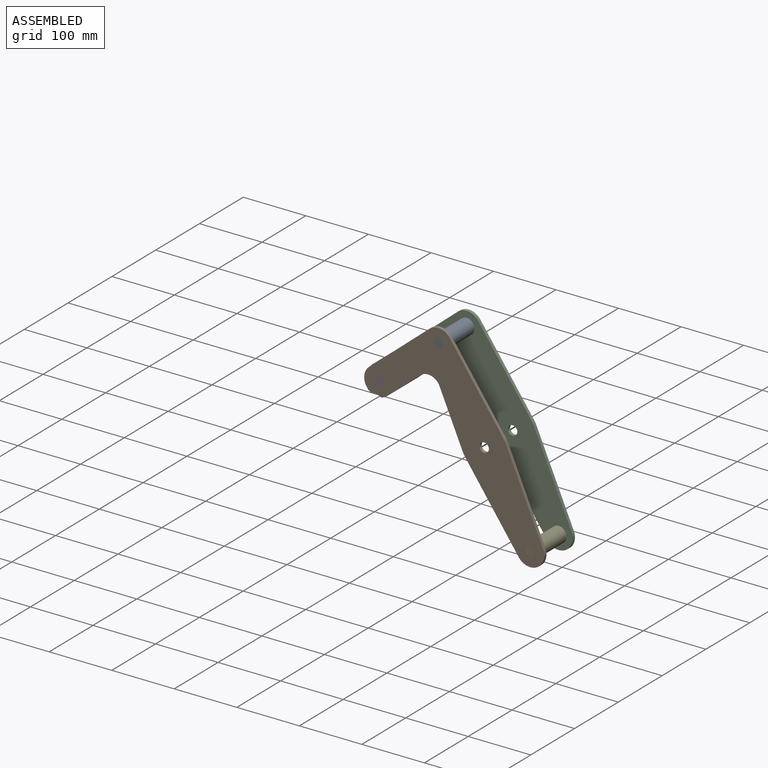
[diagram: assembled view]
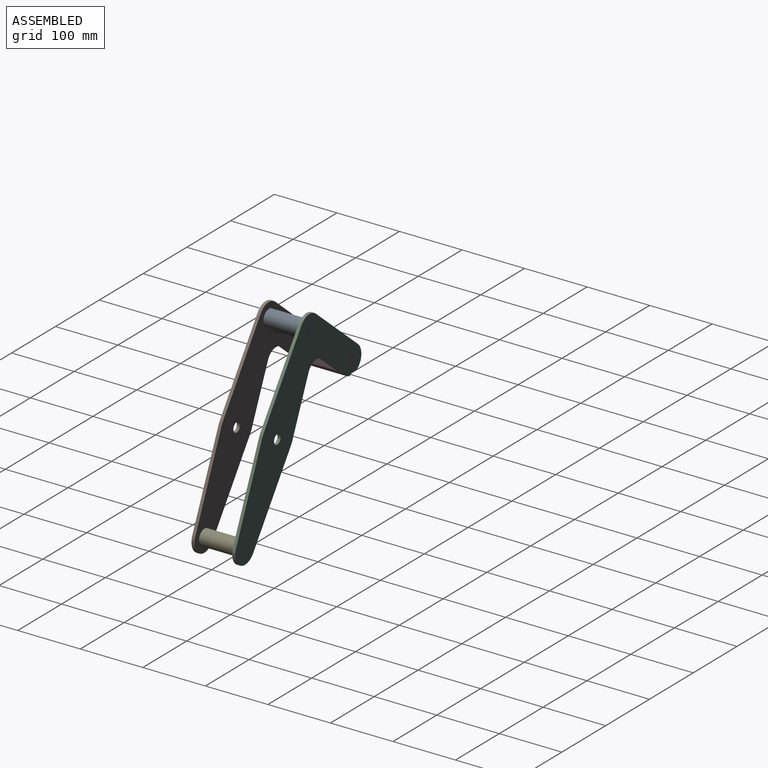
[diagram: assembled view, second angle]
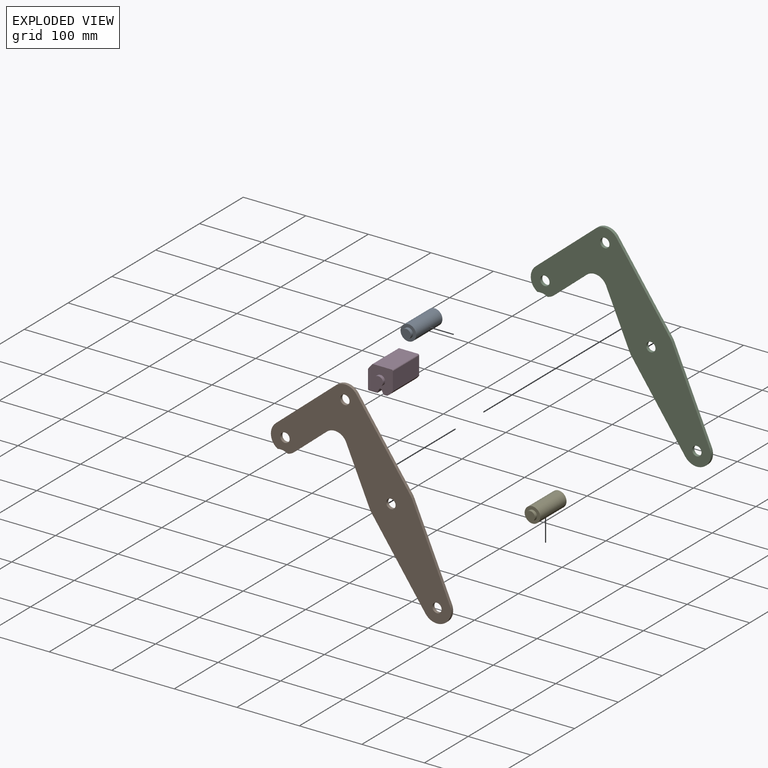
[diagram: exploded view]
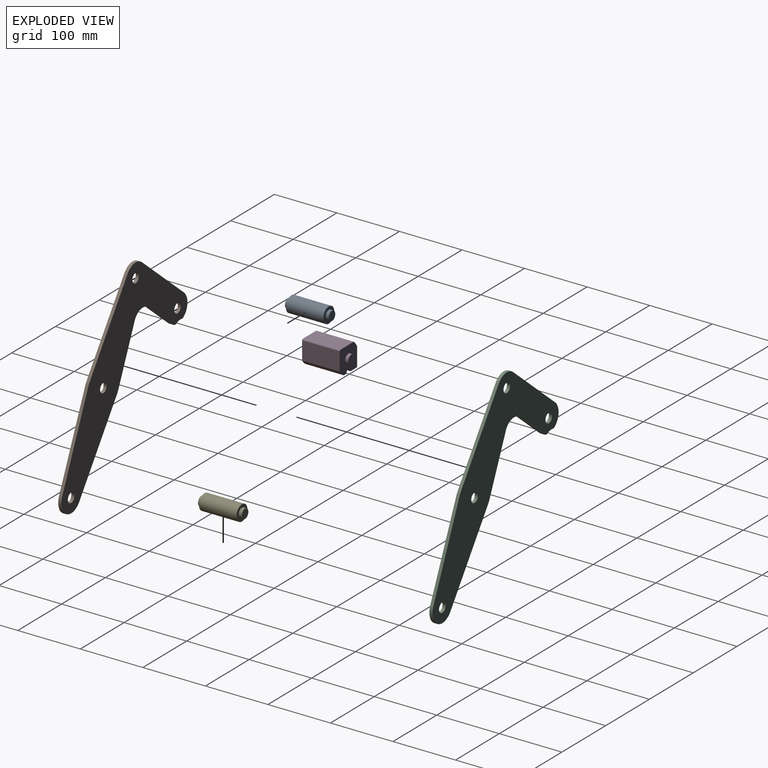
[diagram: exploded view, second angle]
ASSEMBLY  parts=5 mates=3
PART A: 7 faces, bbox 25x70x25 mm
  f0: cylinder r=12.5mm len=60mm, axis (0,-1,0), area 4712.4mm2, adj f2,f5
  f1: cylinder r=7.5mm len=15mm, axis (0,1,0), area 235.6mm2, adj f2,f3
  f2: plane 25x25mm, normal (0,-1,0), area 314.2mm2, adj f0,f1
  f3: plane 15x15mm, normal (0,-1,0), area 176.7mm2, adj f1
  f4: cylinder r=7.5mm len=15mm, axis (0,-1,0), area 235.6mm2, adj f5,f6
  f5: plane 25x25mm, normal (0,1,0), area 314.2mm2, adj f0,f4
  f6: plane 15x15mm, normal (0,1,0), area 176.7mm2, adj f4
PART B: 20 faces, bbox 315.3x5x277.6 mm
  f0: cylinder r=22.5mm len=16.55mm, axis (0,1,0), area 84.8mm2, adj f1,f16,f18,f19
  f1: cylinder r=22.5mm len=8.89mm, axis (0,1,0), area 55.3mm2, adj f0,f2,f18,f19
  f2: plane 52.11x44.14mm, normal (0.76,0,-0.65), area 341.4mm2, adj f1,f3,f18,f19
  f3: cylinder r=20mm len=31.95mm, axis (0,1,0), area 185.5mm2, adj f2,f4,f18,f19
  f4: plane 77.23x50.98mm, normal (-0.83,0,-0.55), area 462.7mm2, adj f3,f5,f18,f19
  f5: cylinder r=37.5mm len=5.82mm, axis (0,1,0), area 37.6mm2, adj f4,f6,f18,f19
  f6: plane 105.71x105.36mm, normal (-0.71,0,-0.71), area 746.2mm2, adj f5,f7,f18,f19
  f7: cylinder r=22.5mm len=38.44mm, axis (0,1,0), area 330.9mm2, adj f6,f8,f18,f19
  f8: plane 124.56x82.22mm, normal (0.83,0,0.55), area 746.2mm2, adj f7,f9,f18,f19
  f9: cylinder r=37.5mm len=5.82mm, axis (0,1,0), area 37.6mm2, adj f8,f10,f18,f19
  f10: plane 105.71x105.36mm, normal (0.71,0,0.71), area 746.2mm2, adj f9,f11,f18,f19
  f11: cylinder r=22.5mm len=33.1mm, axis (0,1,0), area 186.2mm2, adj f10,f12,f18,f19
  f12: plane 95.38x80.8mm, normal (-0.76,0,0.65), area 625mm2, adj f11,f16,f18,f19
  f13: cylinder r=7.5mm len=15mm, axis (0,1,0), area 235.6mm2, adj f18,f19
  f14: cylinder r=7.5mm len=15mm, axis (0,1,0), area 235.6mm2, adj f18,f19
  f15: cylinder r=7.5mm len=15mm, axis (0,1,0), area 235.6mm2, adj f18,f19
  f16: cylinder r=22.5mm len=35.47mm, axis (0,1,0), area 213.4mm2, adj f0,f12,f18,f19
  f17: cylinder r=7.5mm len=15mm, axis (0,1,0), area 235.6mm2, adj f18,f19
  f18: plane 315.27x277.6mm, normal (0,-1,0), area 24520.4mm2, adj f0,f1,f2,f3,f4,f5,f6,f7
  f19: plane 315.27x277.6mm, normal (0,1,0), area 24520.4mm2, adj f0,f1,f2,f3,f4,f5,f6,f7
PART C: same geometry as B
PART D: 26 faces, bbox 39.8x70x39.8 mm
  f0: plane 60x27.87mm, normal (-1,0,0), area 1672.5mm2, adj f9,f14,f17,f18
  f1: cylinder r=22.5mm len=60mm, axis (0,-1,0), area 264.6mm2, adj f2,f9,f14,f18
  f2: plane 60x4.67mm, normal (-0.76,0,0.65), area 367.3mm2, adj f1,f9,f14,f19
  f3: plane 60x29.61mm, normal (0,0,1), area 1776.4mm2, adj f9,f14,f19,f20
  f4: plane 60x28.48mm, normal (1,0,0), area 1708.9mm2, adj f9,f14,f20,f21
  f5: plane 60x2.69mm, normal (0.76,0,-0.65), area 211.7mm2, adj f6,f9,f14,f21
  f6: cylinder r=22.5mm len=60mm, axis (0,-1,0), area 487.4mm2, adj f5,f9,f14,f22
  f7: plane 60x3.72mm, normal (0,0,-1), area 222.9mm2, adj f9,f14,f22,f23
  f8: plane 60x5.32mm, normal (-0.89,0,-0.45), area 356.7mm2, adj f9,f14,f23,f24
  f9: plane 39.84x39.84mm, normal (0,-1,0), area 1295.1mm2, adj f0,f1,f2,f3,f4,f5,f6,f7
  f10: plane 60x6.41mm, normal (0.89,0,-0.45), area 429.7mm2, adj f9,f14,f24,f25
  f11: plane 60x12.67mm, normal (0,0,-1), area 760.3mm2, adj f9,f14,f17,f25
  f12: plane 15x15mm, normal (0,-1,0), area 176.7mm2, adj f13
  f13: cylinder r=7.5mm len=15mm, axis (0,1,0), area 235.6mm2, adj f9,f12
  f14: plane 39.84x39.84mm, normal (0,1,0), area 1295.1mm2, adj f0,f1,f2,f3,f4,f5,f6,f7
  f15: plane 15x15mm, normal (0,1,0), area 176.7mm2, adj f16
  f16: cylinder r=7.5mm len=15mm, axis (0,-1,0), area 235.6mm2, adj f14,f15
  f17: cylinder r=2mm len=60mm, axis (0,1,0), area 188.5mm2, adj f0,f9,f11,f14
  f18: cylinder r=2mm len=60mm, axis (0,-1,0), area 60.8mm2, adj f0,f1,f9,f14
  f19: cylinder r=2mm len=60mm, axis (0,-1,0), area 104.2mm2, adj f2,f3,f9,f14
  f20: cylinder r=2mm len=60mm, axis (0,1,0), area 188.5mm2, adj f3,f4,f9,f14
  f21: cylinder r=2mm len=60mm, axis (0,1,0), area 84.3mm2, adj f4,f5,f9,f14
  f22: cylinder r=2mm len=60mm, axis (0,-1,0), area 60.8mm2, adj f6,f7,f9,f14
  f23: cylinder r=2mm len=60mm, axis (0,-1,0), area 132.9mm2, adj f7,f8,f9,f14
  f24: cylinder r=2mm len=60mm, axis (0,-1,0), area 265.7mm2, adj f8,f9,f10,f14
  f25: cylinder r=2mm len=60mm, axis (0,-1,0), area 15.6mm2, adj f9,f10,f11,f14
PART E: same geometry as A
PLACE A rot(axis=(0,1,0),9.8deg) t=(-89,-30,-16.08)mm
PLACE B rot(axis=(0,1,0),9.8deg) t=(-89,-30,-16.08)mm fixed
PLACE C rot(axis=(0,1,0),9.8deg) t=(-89,35,-16.08)mm
PLACE D t=(-78.87,-30,-1.45)mm
PLACE E rot(axis=(0,1,0),9.8deg) t=(58.22,-30,-277.47)mm
MATE revolute D.f1 <-> B.f1  axis (0,-1,0) through (-169.43,-30,50.43)mm
MATE fastened A.f0 <-> C.f11  axis (0,1,0) through (-73.61,30,130.7)mm
MATE fastened B.f7 <-> E.f0  axis (0,1,0) through (73.61,-30,-130.7)mm
